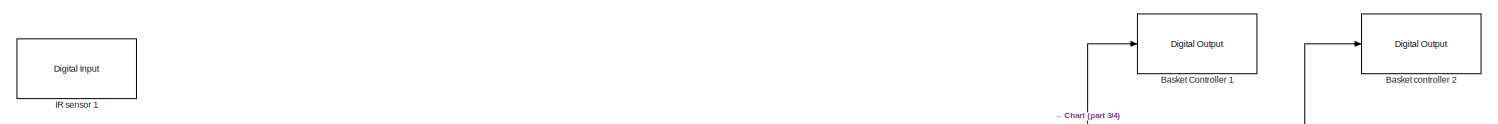
[diagram: root canvas - part 1/4, top left region]
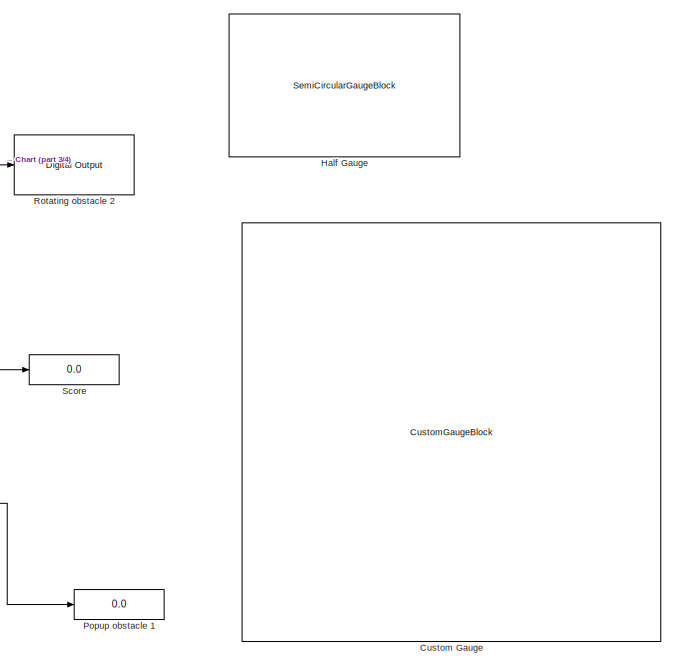
[diagram: root canvas - part 2/4, middle right region]
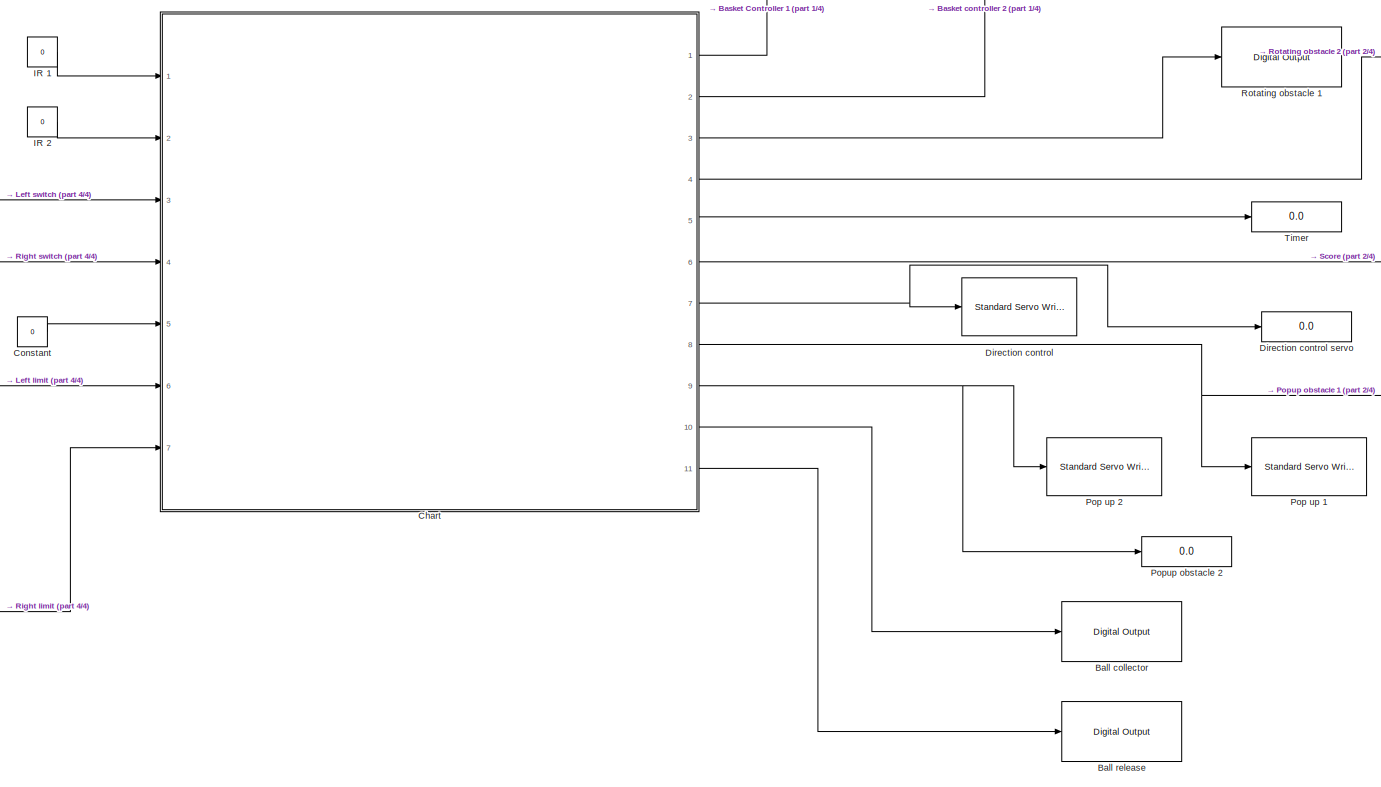
[diagram: root canvas - part 3/4, center side, full height]
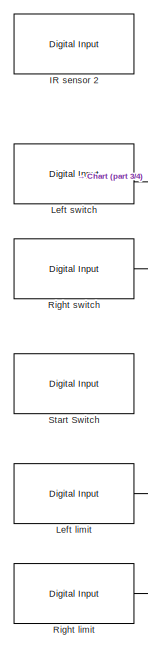
[diagram: root canvas - part 4/4, middle left region]
MODEL slx_8702a9b94315
KIND model
CONFIG AbsTol = auto
CONFIG EnableMultiTasking = on
CONFIG FixedStep = 0.01
CONFIG MaxStep = auto
CONFIG MinStep = auto
CONFIG RelTol = 1e-3
CONFIG SampleTimeConstraint = Unconstrained
CONFIG Solver = FixedStepAuto
CONFIG SolverName = FixedStepAuto
CONFIG StartTime = 0.0
CONFIG StopTime = inf
BLOCK [Reference] Ball collector  REF=arduinolib/Digital Output
  Ports = [1]
  SourceBlock = arduinolib/Digital Output
  SourceProductBaseCode = ARDUINO
  SourceProductName = Simulink Support Package for Arduino Hardware
  SourceType = Arduino Digital Output
BLOCK [Reference] Ball release  REF=arduinolib/Digital Output
  Ports = [1]
  SourceBlock = arduinolib/Digital Output
  SourceProductBaseCode = ARDUINO
  SourceProductName = Simulink Support Package for Arduino Hardware
  SourceType = Arduino Digital Output
BLOCK [Reference] Basket Controller 1  REF=arduinolib/Digital Output
  Ports = [1]
  SourceBlock = arduinolib/Digital Output
  SourceProductBaseCode = ARDUINO
  SourceProductName = Simulink Support Package for Arduino Hardware
  SourceType = Arduino Digital Output
BLOCK [Reference] Basket controller 2  REF=arduinolib/Digital Output
  Ports = [1]
  SourceBlock = arduinolib/Digital Output
  SourceProductBaseCode = ARDUINO
  SourceProductName = Simulink Support Package for Arduino Hardware
  SourceType = Arduino Digital Output
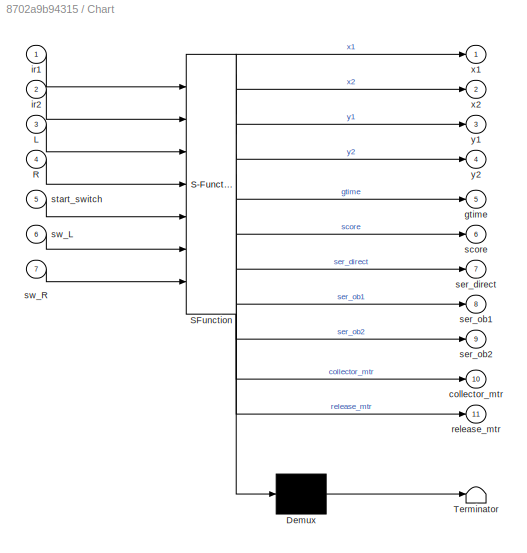
BLOCK [SubSystem] Chart
  BlockKeywords = __PRM__SERIALIZED__DATA__:Stateflow Chart,Stateflow Diagram
  ErrorFcn = Stateflow.Translate.translate
  PermitHierarchicalResolution = ExplicitOnly
  Ports = [7, 11]
  RequestExecContextInheritance = off
  SFBlockType = Chart
  TreatAsAtomicUnit = on
BLOCK [Demux] Chart/ Demux 
  Outputs = 1
  Ports = [1, 1]
BLOCK [S-Function] Chart/ SFunction 
  EnableBusSupport = on
  FunctionName = sf_sfun
  PortCounts = [7 12]
  Ports = [7, 12]
  SFcnIsStateOwnerBlock = off
  SFunctionDeploymentMode = off
  Tag = Stateflow S-Function Gaming_machine 3
BLOCK [Terminator] Chart/ Terminator 
BLOCK [Inport] Chart/L
  IconDisplay = Port number
  Port = 3
BLOCK [Inport] Chart/R
  IconDisplay = Port number
  Port = 4
BLOCK [Outport] Chart/collector_mtr
  IconDisplay = Port number
  Port = 10
BLOCK [Outport] Chart/gtime
  IconDisplay = Port number
  Port = 5
BLOCK [Inport] Chart/ir1
  IconDisplay = Port number
BLOCK [Inport] Chart/ir2
  IconDisplay = Port number
  Port = 2
BLOCK [Outport] Chart/release_mtr
  IconDisplay = Port number
  Port = 11
BLOCK [Outport] Chart/score
  IconDisplay = Port number
  Port = 6
BLOCK [Outport] Chart/ser_direct
  IconDisplay = Port number
  Port = 7
BLOCK [Outport] Chart/ser_ob1
  IconDisplay = Port number
  Port = 8
BLOCK [Outport] Chart/ser_ob2
  IconDisplay = Port number
  Port = 9
BLOCK [Inport] Chart/start_switch
  IconDisplay = Port number
  Port = 5
BLOCK [Inport] Chart/sw_L
  IconDisplay = Port number
  Port = 6
BLOCK [Inport] Chart/sw_R
  IconDisplay = Port number
  Port = 7
BLOCK [Outport] Chart/x1
  IconDisplay = Port number
BLOCK [Outport] Chart/x2
  IconDisplay = Port number
  Port = 2
BLOCK [Outport] Chart/y1
  IconDisplay = Port number
  Port = 3
BLOCK [Outport] Chart/y2
  IconDisplay = Port number
  Port = 4
BLOCK [Constant] Constant
  Value = 0
BLOCK [CustomGaugeBlock] Custom Gauge
  BackgroundImage = data:image/svg+xml;base64,PD94bWwgdmVyc2lvbj0iMS4wIiBlbmNvZGluZz0iVVRGLTgiIHN0YW5kYWxvbmU9Im5vIj8+CjwhLS0gR2VuZXJhdG9yOiBBZG9iZSBJbGx1c3RyYXRvciAxOS4yLjEsIFNWRyBFeHBvcnQgUGx1Zy1JbiAuIFNWRyBWZXJzaW9uOiA2LjAwIEJ1aWxkIDApICAtLT4KCjxzdmcKICAgeG1sbnM6ZGM9Imh0dHA6Ly9wdXJsLm9yZy9kYy9lbGVtZW50cy8xLjEvIgogICB4bWxuczpjYz0iaHR0cDovL2NyZWF0aXZlY29tbW9ucy5vcmcvbnMjIgogICB4bWxuczpyZGY9Imh0dHA6Ly93d3cudzMub3JnLz...<+9686ch>
  GaugeArcDefined = true
  GaugeArcRadius = 0.1358563990074277
  GaugeArcRatio = 0.8333333333333
  GaugeArcRotation = 240.5385250290321
  GaugeArcStrokeWidth = 0.03972965542329953
  GaugeArcTransparency = 0.4273789649415693
  GaugeMax = 2500
  GaugeTickColor = #faf5c8
  NeedleHeight = 0.11602152693163792
  NeedleImage = data:image/svg+xml;base64,PD94bWwgdmVyc2lvbj0iMS4wIiBlbmNvZGluZz0idXRmLTgiPz4KPCEtLSBHZW5lcmF0b3I6IEFkb2JlIElsbHVzdHJhdG9yIDE5LjIuMSwgU1ZHIEV4cG9ydCBQbHVnLUluIC4gU1ZHIFZlcnNpb246IDYuMDAgQnVpbGQgMCkgIC0tPgo8c3ZnIHZlcnNpb249IjEuMSIgeG1sbnM9Imh0dHA6Ly93d3cudzMub3JnLzIwMDAvc3ZnIiB4bWxuczp4bGluaz0iaHR0cDovL3d3dy53My5vcmcvMTk5OS94bGluayIgeD0iMHB4IiB5PSIwcHgiCgkgdmlld0JveD0iMCAwIDIwMCA1MCIgc3R5bGU9ImVuYW...<+9966ch>
  NeedleInitialRotation = -59.94322499147643
  NeedleWidth = 0.1911368983686954
  NeedleXPos = 0.3802298124325669
  NeedleYPos = 0.48117305677424654
  ScaleColorsJSON = []
  ValueArcColor = #1759b0
  fixedAspectRatio = on
BLOCK [Reference] Direction control  REF=arduinolib/Standard Servo Write
  Ports = [1]
  SourceBlock = arduinolib/Standard Servo Write
  SourceProductBaseCode = ARDUINO
  SourceProductName = Simulink Support Package for Arduino Hardware
  SourceType = Arduino Standard Servo Write
BLOCK [Display] Direction control servo
  Decimation = 1
  Ports = [1]
BLOCK [SemiCircularGaugeBlock] Half Gauge
  ScaleMax = 180
BLOCK [Constant] IR 1
  Value = 0
BLOCK [Constant] IR 2
  Value = 0
BLOCK [Reference] IR sensor 1  REF=arduinolib/Digital Input
  Ports = [0, 1]
  SourceBlock = arduinolib/Digital Input
  SourceProductBaseCode = ARDUINO
  SourceProductName = Simulink Support Package for Arduino Hardware
  SourceType = Arduino Digital Input
BLOCK [Reference] IR sensor 2  REF=arduinolib/Digital Input
  Ports = [0, 1]
  SourceBlock = arduinolib/Digital Input
  SourceProductBaseCode = ARDUINO
  SourceProductName = Simulink Support Package for Arduino Hardware
  SourceType = Arduino Digital Input
BLOCK [Reference] Left limit  REF=arduinolib/Digital Input
  Ports = [0, 1]
  SourceBlock = arduinolib/Digital Input
  SourceProductBaseCode = ARDUINO
  SourceProductName = Simulink Support Package for Arduino Hardware
  SourceType = Arduino Digital Input
BLOCK [Reference] Left switch  REF=arduinolib/Digital Input
  Ports = [0, 1]
  SourceBlock = arduinolib/Digital Input
  SourceProductBaseCode = ARDUINO
  SourceProductName = Simulink Support Package for Arduino Hardware
  SourceType = Arduino Digital Input
BLOCK [Reference] Pop up 1  REF=arduinolib/Standard Servo Write
  Ports = [1]
  SourceBlock = arduinolib/Standard Servo Write
  SourceProductBaseCode = ARDUINO
  SourceProductName = Simulink Support Package for Arduino Hardware
  SourceType = Arduino Standard Servo Write
BLOCK [Reference] Pop up 2  REF=arduinolib/Standard Servo Write
  Ports = [1]
  SourceBlock = arduinolib/Standard Servo Write
  SourceProductBaseCode = ARDUINO
  SourceProductName = Simulink Support Package for Arduino Hardware
  SourceType = Arduino Standard Servo Write
BLOCK [Display] Popup obstacle 1
  Decimation = 1
  Ports = [1]
BLOCK [Display] Popup obstacle 2
  Decimation = 1
  Ports = [1]
BLOCK [Reference] Right limit  REF=arduinolib/Digital Input
  Ports = [0, 1]
  SourceBlock = arduinolib/Digital Input
  SourceProductBaseCode = ARDUINO
  SourceProductName = Simulink Support Package for Arduino Hardware
  SourceType = Arduino Digital Input
BLOCK [Reference] Right switch  REF=arduinolib/Digital Input
  Ports = [0, 1]
  SourceBlock = arduinolib/Digital Input
  SourceProductBaseCode = ARDUINO
  SourceProductName = Simulink Support Package for Arduino Hardware
  SourceType = Arduino Digital Input
BLOCK [Reference] Rotating obstacle 1  REF=arduinolib/Digital Output
  Ports = [1]
  SourceBlock = arduinolib/Digital Output
  SourceProductBaseCode = ARDUINO
  SourceProductName = Simulink Support Package for Arduino Hardware
  SourceType = Arduino Digital Output
BLOCK [Reference] Rotating obstacle 2  REF=arduinolib/Digital Output
  Ports = [1]
  SourceBlock = arduinolib/Digital Output
  SourceProductBaseCode = ARDUINO
  SourceProductName = Simulink Support Package for Arduino Hardware
  SourceType = Arduino Digital Output
BLOCK [Display] Score
  Decimation = 1
  Ports = [1]
BLOCK [Reference] Start Switch  REF=arduinolib/Digital Input
  Ports = [0, 1]
  SourceBlock = arduinolib/Digital Input
  SourceProductBaseCode = ARDUINO
  SourceProductName = Simulink Support Package for Arduino Hardware
  SourceType = Arduino Digital Input
BLOCK [Display] Timer
  Decimation = 1
  Ports = [1]
LINE Chart:1 -> Basket Controller 1:1
LINE Chart:10 -> Ball collector:1
LINE Chart:11 -> Ball release:1
LINE Chart:2 -> Basket controller 2:1
LINE Chart:3 -> Rotating obstacle 1:1
LINE Chart:4 -> Rotating obstacle 2:1
LINE Chart:5 -> Timer:1
LINE Chart:6 -> Score:1
NET Chart:7 -> Direction control servo:1, Direction control:1
NET Chart:8 -> Pop up 1:1, Popup obstacle 1:1
NET Chart:9 -> Pop up 2:1, Popup obstacle 2:1
LINE Constant:1 -> Chart:5
LINE IR 1:1 -> Chart:1
LINE IR 2:1 -> Chart:2
LINE Left limit:1 -> Chart:6
LINE Left switch:1 -> Chart:3
LINE Right limit:1 -> Chart:7
LINE Right switch:1 -> Chart:4
note: NET lines group one-source signal fan-out (src -> all destinations, sorted); 1:1 wires keep LINE
CHART Chart states=27 transitions=37
  STATE_LABEL 'Initial\n\ncollector_mtr=0;\nrelease_mtr=0;\nser_direct=10;\nser_ob1=10;\nser_ob2=10;\n'
  STATE_LABEL 'Game_ON\n\ncollector_mtr=1;\nrelease_mtr=1;'
  STATE_LABEL 'Game_time'
  STATE_LABEL 'Time1\n\ngtime=gtime;'
  STATE_LABEL 'Time2\n\ngtime=gtime;'
  STATE_LABEL '[after(1,sec)&&gtime>0]{gtime = gtime - 1}'
  STATE_LABEL '[after(1,sec)&&gtime>0]{gtime = gtime - 1}'
  STATE_LABEL 'Scoring'
  STATE_LABEL 'default\nscore=0;'
  STATE_LABEL 'dummy1\n\nscore=score;'
  STATE_LABEL 'dummy2\n\nscore=score;'
  STATE_LABEL '[ir1==1&&ir2==1]{score=score+100}'
  STATE_LABEL '[after(200,msec)]'
  STATE_LABEL 'Direction_control\n'
  STATE_LABEL 'Servo_movement1\n\nser_direct=ser_direct;'
  STATE_LABEL 'Servo_movement2\n\nser_direct=ser_direct;'
  STATE_LABEL '[after(50,msec)&&ser_direct<170]{ser_direct = ser_direct + 1}'
  STATE_LABEL '[ser_direct==170]'
  STATE_LABEL '[ser_direct==10]'
  STATE_LABEL '[after(50,msec)&&ser_direct>10]{ser_direct = ser_direct - 1}'
  STATE_LABEL 'Obstacle_rotating\n\n'
  STATE_LABEL 'Initial\n\ny1=0;\ny2=0;'
  STATE_LABEL 'State_changer\n\nrandom=randi(10);'
  STATE_LABEL 'State1\n\ny1=1;\ny2=0;'
  STATE_LABEL 'State2\n\ny1=1;\ny2=0;'
  STATE_LABEL '[random<=5]'
  STATE_LABEL '[after(5,sec)]'
  STATE_LABEL '[after(5,sec)]'
  STATE_LABEL '[random>5]'
  STATE_LABEL 'Slider_movement'
  STATE_LABEL 'Rest\nx1=0;\nx2=0;'
  STATE_LABEL 'Right_movement\n\nx1=0;\nx2=1;'
  STATE_LABEL 'Left_movement\n\nx1=1;\nx2=0;'
  STATE_LABEL '[(L==0&&R==0)||(sw_L==1&&sw_R==0)]'
  STATE_LABEL '[L==1&&R==0]'
  STATE_LABEL '[R==1&&L==0]'
  STATE_LABEL '[(R==0&&L==0)||(sw_R==1&&sw_R==0)]'
  STATE_LABEL '[L==0&&R==1]'
  STATE_LABEL '[L==1&&R==0]'
  STATE_LABEL 'Obstacle_popup\n\n'
